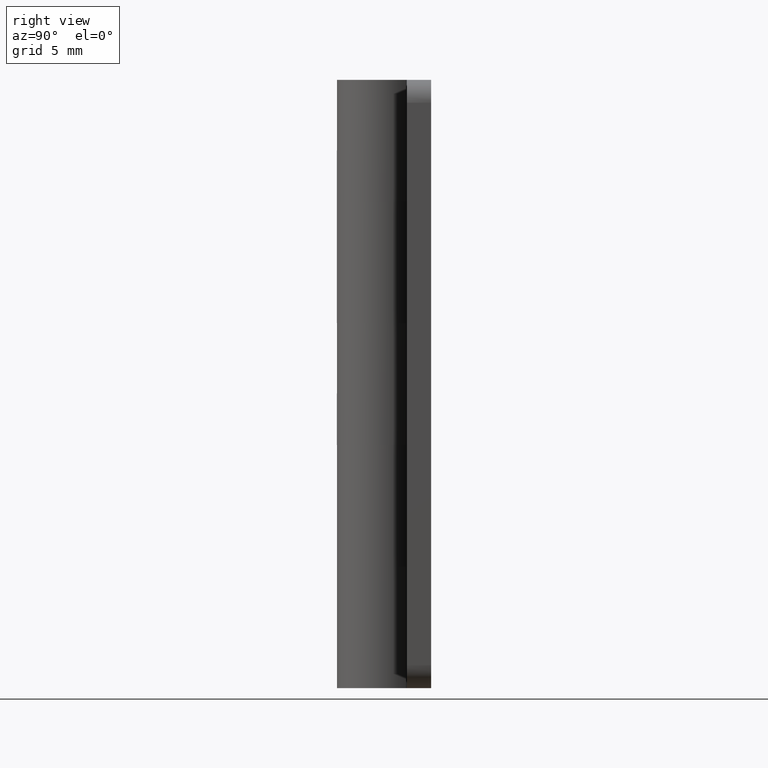
[diagram: clean part render]
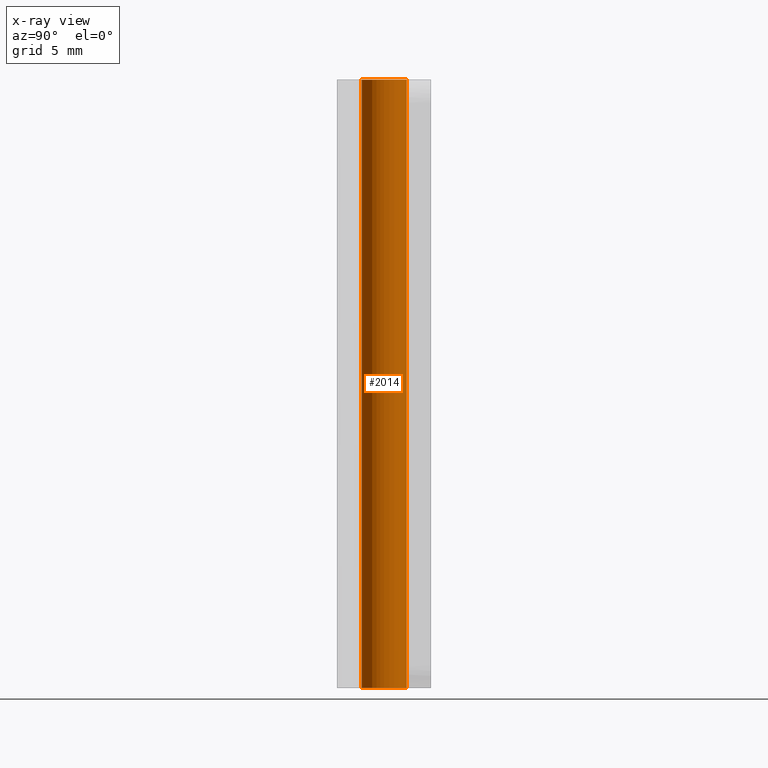
[diagram: x-ray — body ghosted, one internal face saturated and labeled with its STEP entity id]
A machine part, right view, then the same camera in x-ray: the body is ghosted and one INTERNAL B-rep face — a face not visible from any outside direction — is saturated and labeled: STEP entity #2014.
In plain terms, the highlighted face is a freeform B-spline surface patch.
Its self-contained STEP definition (entity closure, byte-faithful):
#1912=CARTESIAN_POINT('',(0.177051351985138,-1.489514289545500,41.000000000000014));
#1913=CARTESIAN_POINT('',(0.134422092956966,-1.494581423172908,41.000000000000014));
#1914=CARTESIAN_POINT('',(0.091572809302285,-1.497202197632800,41.000000000000007));
#1915=CARTESIAN_POINT('',(-1.405629388330515,-1.588775006935085,41.000000000000014));
#1916=CARTESIAN_POINT('',(-1.497202197632800,-0.091572809302285,41.000000000000007));
#1917=CARTESIAN_POINT('',(-1.588775006935085,1.405629388330515,41.000000000000014));
#1918=CARTESIAN_POINT('',(-0.091572809302285,1.497202197632800,41.000000000000007));
#1919=CARTESIAN_POINT('',(0.177051351985138,-1.489514289545500,-1.025000000000006));
#1920=CARTESIAN_POINT('',(0.134422092956966,-1.494581423172908,-1.025000000000006));
#1921=CARTESIAN_POINT('',(0.091572809302285,-1.497202197632800,-1.025000000000006));
#1922=CARTESIAN_POINT('',(-1.405629388330515,-1.588775006935085,-1.025000000000006));
#1923=CARTESIAN_POINT('',(-1.497202197632800,-0.091572809302285,-1.025000000000006));
#1924=CARTESIAN_POINT('',(-1.588775006935085,1.405629388330515,-1.025000000000006));
#1925=CARTESIAN_POINT('',(-0.091572809302285,1.497202197632800,-1.025000000000006));
#1933=(BOUNDED_SURFACE()B_SPLINE_SURFACE(2,1,((#1912,#1919),(#1913,#1920),(#1914,#1921),(#1915,#1922),(#1916,#1923),(#1917,#1924),(#1918,#1925)),.UNSPECIFIED.,.F.,.F.,.U.)B_SPLINE_SURFACE_WITH_KNOTS((3,2,2,3),(2,2),(3.078760800517997,3.141592653589793,4.712388980384690,6.283185307179586),(0.0,42.025000000000013),.UNSPECIFIED.)GEOMETRIC_REPRESENTATION_ITEM()RATIONAL_B_SPLINE_SURFACE(((0.977505800795127,0.977505800795127),(0.988284271247462,0.988284271247462),(1.0,1.0),(0.707106781186548,0.707106781186548),(1.0,1.0),(0.707106781186548,0.707106781186548),(1.0,1.0)))REPRESENTATION_ITEM('')SURFACE());
#1934=CARTESIAN_POINT('',(0.177048581627317,-1.489514618839295,-4.543085E-015));
#1935=VERTEX_POINT('',#1934);
#1936=CARTESIAN_POINT('',(-1.500000000000000,0.0,0.0));
#1937=VERTEX_POINT('',#1936);
#1938=CARTESIAN_POINT('',(0.177048581627317,-1.489514618839296,-4.543085E-015));
#1939=CARTESIAN_POINT('',(0.088834779655407,-1.500000000000000,0.0));
#1940=CARTESIAN_POINT('',(0.0,-1.500000000000000,0.0));
#1941=CARTESIAN_POINT('',(-1.500000000000000,-1.500000000000000,0.0));
#1942=CARTESIAN_POINT('',(-1.500000000000000,0.0,0.0));
#1950=(BOUNDED_CURVE()B_SPLINE_CURVE(2,(#1938,#1939,#1940,#1941,#1942),.UNSPECIFIED.,.F.,.U.)B_SPLINE_CURVE_WITH_KNOTS((3,2,3),(0.229562787845978,0.250000000000000,0.500000000000000),.UNSPECIFIED.)CURVE()GEOMETRIC_REPRESENTATION_ITEM()RATIONAL_B_SPLINE_CURVE((0.956027370289129,0.976056316594540,1.0,0.707106781186548,1.0))REPRESENTATION_ITEM(''));
#1951=EDGE_CURVE('',#1935,#1937,#1950,.T.);
#1952=ORIENTED_EDGE('',*,*,#1951,.F.);
#1953=CARTESIAN_POINT('',(0.177048615914858,-1.489514614763830,40.0));
#1954=VERTEX_POINT('',#1953);
#1955=CARTESIAN_POINT('',(0.177048615914858,-1.489514614763830,40.0));
#1956=CARTESIAN_POINT('',(0.177048581627317,-1.489514618839295,-4.543085E-015));
#1957=QUASI_UNIFORM_CURVE('',1,(#1955,#1956),.UNSPECIFIED.,.F.,.U.);
#1958=EDGE_CURVE('',#1954,#1935,#1957,.T.);
#1959=ORIENTED_EDGE('',*,*,#1958,.F.);
#1960=CARTESIAN_POINT('',(-1.500000000000000,0.0,40.0));
#1961=VERTEX_POINT('',#1960);
#1962=CARTESIAN_POINT('',(0.177048615914858,-1.489514614763830,40.0));
#1963=CARTESIAN_POINT('',(0.088834796980410,-1.500000000000000,40.000000000000007));
#1964=CARTESIAN_POINT('',(0.0,-1.500000000000000,40.0));
#1965=CARTESIAN_POINT('',(-1.500000000000000,-1.500000000000000,39.999999999999993));
#1966=CARTESIAN_POINT('',(-1.500000000000000,0.0,40.0));
#1974=(BOUNDED_CURVE()B_SPLINE_CURVE(2,(#1962,#1963,#1964,#1965,#1966),.UNSPECIFIED.,.F.,.U.)B_SPLINE_CURVE_WITH_KNOTS((3,2,3),(0.229562783955644,0.250000000000000,0.500000000000000),.UNSPECIFIED.)CURVE()GEOMETRIC_REPRESENTATION_ITEM()RATIONAL_B_SPLINE_CURVE((0.956027362663894,0.976056312036731,1.0,0.707106781186548,1.0))REPRESENTATION_ITEM(''));
#1975=EDGE_CURVE('',#1954,#1961,#1974,.T.);
#1976=ORIENTED_EDGE('',*,*,#1975,.T.);
#1977=CARTESIAN_POINT('',(-0.091572809322919,1.497202197631538,40.0));
#1978=VERTEX_POINT('',#1977);
#1979=CARTESIAN_POINT('',(-1.500000000000000,0.0,40.0));
#1980=CARTESIAN_POINT('',(-1.500000000000000,1.411059100319583,39.999999999999993));
#1981=CARTESIAN_POINT('',(-0.091572809322919,1.497202197631539,40.000000000000007));
#1989=(BOUNDED_CURVE()B_SPLINE_CURVE(2,(#1979,#1980,#1981),.UNSPECIFIED.,.F.,.U.)B_SPLINE_CURVE_WITH_KNOTS((3,3),(0.500000000000000,0.739332962237213),.UNSPECIFIED.)CURVE()GEOMETRIC_REPRESENTATION_ITEM()RATIONAL_B_SPLINE_CURVE((1.0,0.719603993288737,0.976072041663010))REPRESENTATION_ITEM(''));
#1990=EDGE_CURVE('',#1961,#1978,#1989,.T.);
#1991=ORIENTED_EDGE('',*,*,#1990,.T.);
#1992=CARTESIAN_POINT('',(-0.091572809322920,1.497202197631538,1.110223E-016));
#1993=VERTEX_POINT('',#1992);
#1994=CARTESIAN_POINT('',(-0.091572809322919,1.497202197631538,40.0));
#1995=CARTESIAN_POINT('',(-0.091572809322920,1.497202197631538,1.110223E-016));
#1996=QUASI_UNIFORM_CURVE('',1,(#1994,#1995),.UNSPECIFIED.,.F.,.U.);
#1997=EDGE_CURVE('',#1978,#1993,#1996,.T.);
#1998=ORIENTED_EDGE('',*,*,#1997,.T.);
#1999=CARTESIAN_POINT('',(-1.500000000000000,0.0,0.0));
#2000=CARTESIAN_POINT('',(-1.500000000000000,1.411059100319583,0.0));
#2001=CARTESIAN_POINT('',(-0.091572809322920,1.497202197631539,1.110223E-016));
#2009=(BOUNDED_CURVE()B_SPLINE_CURVE(2,(#1999,#2000,#2001),.UNSPECIFIED.,.F.,.U.)B_SPLINE_CURVE_WITH_KNOTS((3,3),(0.500000000000000,0.739332962237213),.UNSPECIFIED.)CURVE()GEOMETRIC_REPRESENTATION_ITEM()RATIONAL_B_SPLINE_CURVE((1.0,0.719603993288737,0.976072041663010))REPRESENTATION_ITEM(''));
#2010=EDGE_CURVE('',#1937,#1993,#2009,.T.);
#2011=ORIENTED_EDGE('',*,*,#2010,.F.);
#2012=EDGE_LOOP('',(#1952,#1959,#1976,#1991,#1998,#2011));
#2013=FACE_OUTER_BOUND('',#2012,.T.);
#2014=ADVANCED_FACE('',(#2013),#1933,.T.);